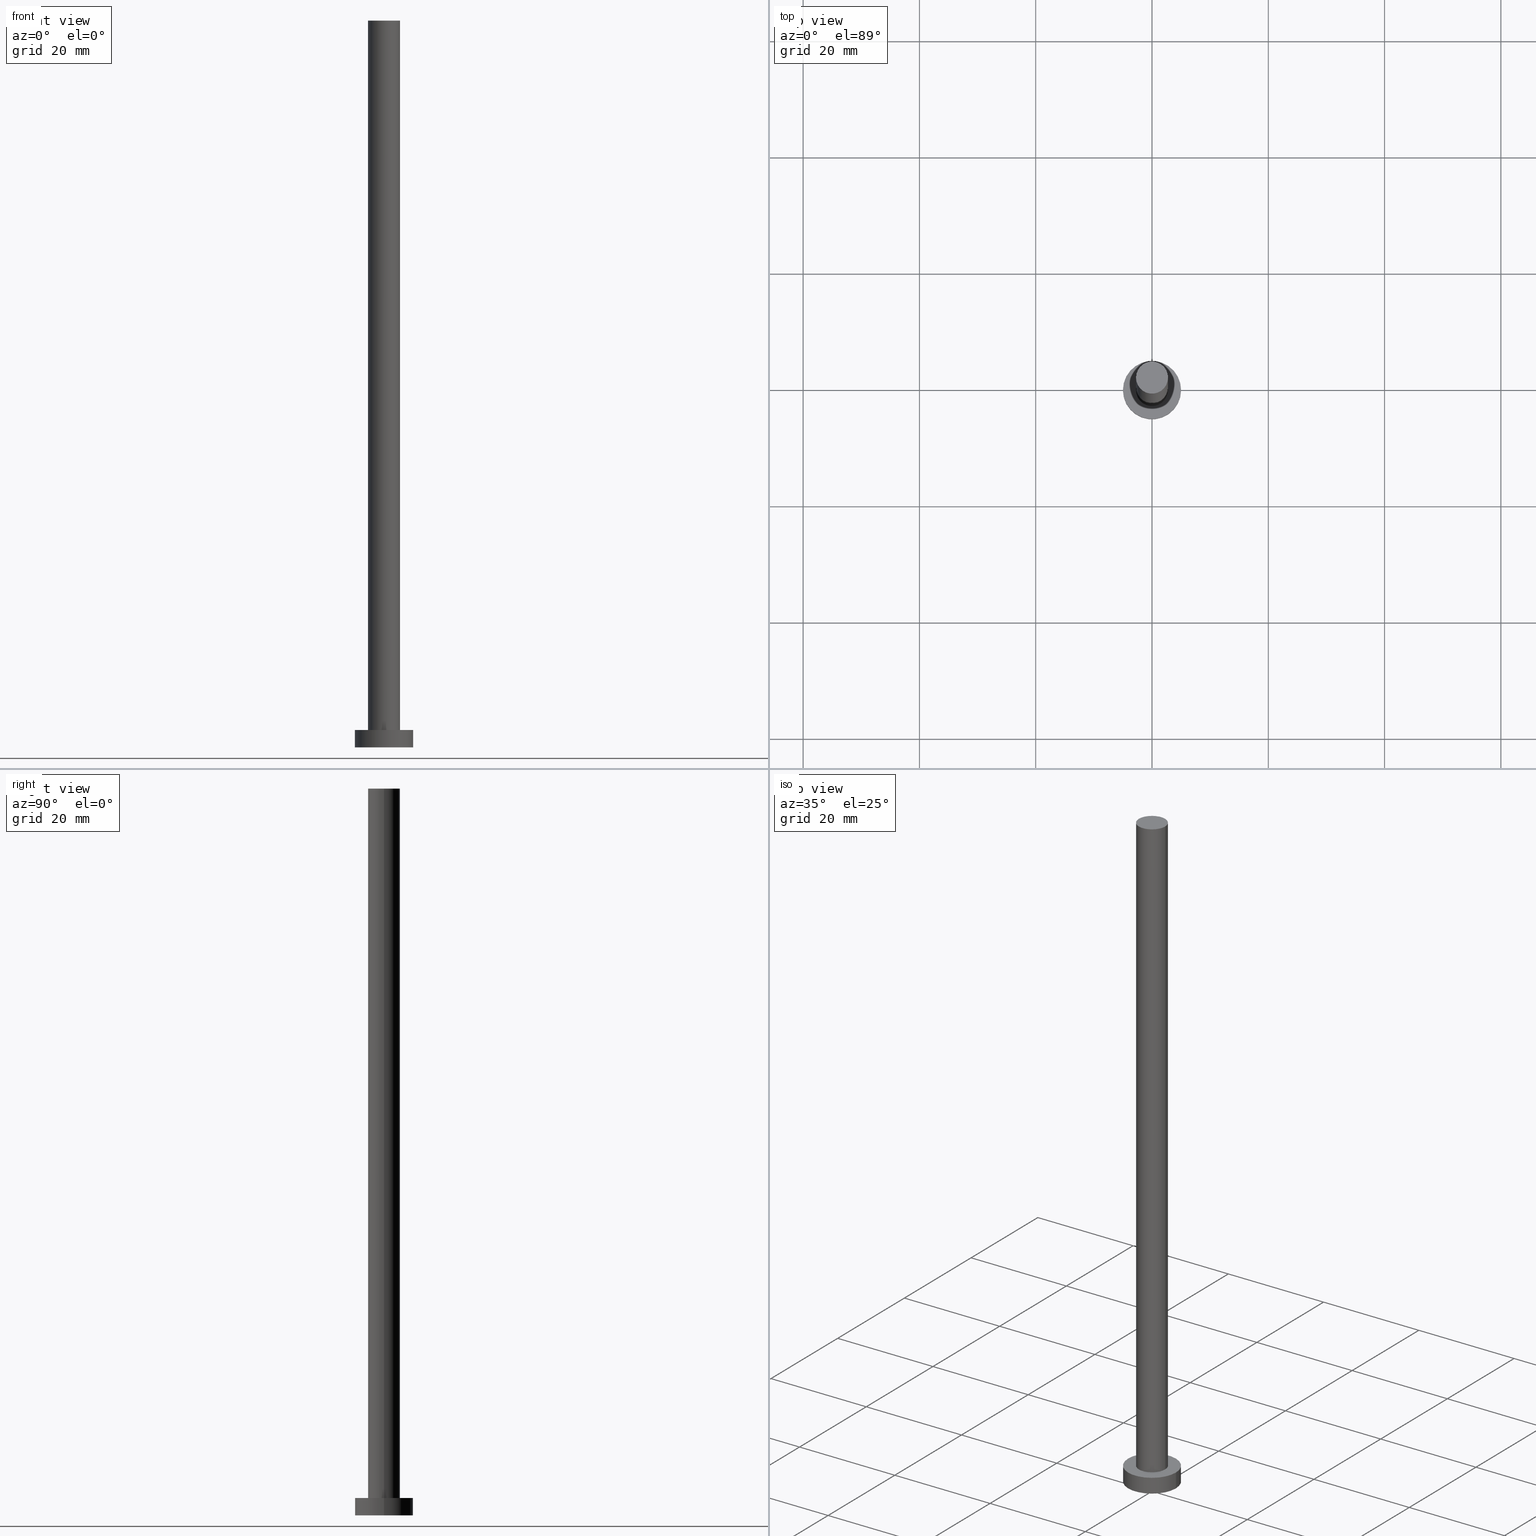
[diagram: canonical four-view strip — front | top / right | iso, engineering-drawing reading convention]
A machine part, canonical four-view strip (front | top / right | iso — engineering-drawing reading convention). The complete STEP part file that produces these views, byte-faithful:
ISO-10303-21;
HEADER;
FILE_DESCRIPTION (( 'STEP AP203' ),
    '1' );
FILE_NAME ('3640.STEP',
    '2023-02-13T13:23:10',
    ( '' ),
    ( '' ),
    'SwSTEP 2.0',
    'SolidWorks 2019',
    '' );
FILE_SCHEMA (( 'CONFIG_CONTROL_DESIGN' ));
ENDSEC;

DATA;
#1 = DIRECTION ( 'NONE',  ( -1.000000000000000000, 0.000000000000000000, 0.000000000000000000 ) ) ;
#2 = CARTESIAN_POINT ( 'NONE',  ( 5.000000000000000000, 6.123233995736766282E-16, 0.000000000000000000 ) ) ;
#3 = DIRECTION ( 'NONE',  ( -0.000000000000000000, -0.000000000000000000, -1.000000000000000000 ) ) ;
#4 = APPROVAL_PERSON_ORGANIZATION ( #160, #202, #71 ) ;
#5 = DIRECTION ( 'NONE',  ( -0.000000000000000000, -0.000000000000000000, -1.000000000000000000 ) ) ;
#6 = CYLINDRICAL_SURFACE ( 'NONE', #140, 2.750000000000000000 ) ;
#7 = DATE_AND_TIME ( #228, #53 ) ;
#8 = PRODUCT_RELATED_PRODUCT_CATEGORY ( 'detail', '', ( #14 ) ) ;
#9 = PLANE ( 'NONE',  #151 ) ;
#10 = DATE_AND_TIME ( #231, #113 ) ;
#11 = EDGE_CURVE ( 'NONE', #101, #120, #83, .T. ) ;
#12 = ORIENTED_EDGE ( 'NONE', *, *, #11, .F. ) ;
#13 = ORIENTED_EDGE ( 'NONE', *, *, #132, .T. ) ;
#14 = PRODUCT ( '3640', '3640', '', ( #155 ) ) ;
#15 = VECTOR ( 'NONE', #161, 1000.000000000000000 ) ;
#16 = ORIENTED_EDGE ( 'NONE', *, *, #203, .T. ) ;
#17 = APPLICATION_PROTOCOL_DEFINITION ( 'international standard', 'config_control_design', 1994, #172 ) ;
#18 = DIRECTION ( 'NONE',  ( -0.000000000000000000, -0.000000000000000000, -1.000000000000000000 ) ) ;
#19 = DIRECTION ( 'NONE',  ( 1.000000000000000000, 0.000000000000000000, 0.000000000000000000 ) ) ;
#20 = DIRECTION ( 'NONE',  ( -1.000000000000000000, 0.000000000000000000, 0.000000000000000000 ) ) ;
#21 = ORGANIZATION ( 'NEUR�EN�', 'NEUR�EN�', '' ) ;
#22 = VERTEX_POINT ( 'NONE', #250 ) ;
#23 = APPROVAL_STATUS ( 'not_yet_approved' ) ;
#24 = CYLINDRICAL_SURFACE ( 'NONE', #47, 5.000000000000000000 ) ;
#25 = EDGE_CURVE ( 'NONE', #22, #101, #176, .T. ) ;
#26 = CARTESIAN_POINT ( 'NONE',  ( 0.000000000000000000, 0.000000000000000000, 3.000000000000000000 ) ) ;
#27 = APPROVAL_DATE_TIME ( #7, #202 ) ;
#28 = FACE_OUTER_BOUND ( 'NONE', #194, .T. ) ;
#29 = AXIS2_PLACEMENT_3D ( 'NONE', #162, #114, #166 ) ;
#30 = PERSON_AND_ORGANIZATION ( #213, #21 ) ;
#31 = ORIENTED_EDGE ( 'NONE', *, *, #32, .F. ) ;
#32 = EDGE_CURVE ( 'NONE', #120, #138, #77, .T. ) ;
#33 = SHAPE_DEFINITION_REPRESENTATION ( #60, #66 ) ;
#34 = CALENDAR_DATE ( 2023, 13, 2 ) ;
#35 = ORIENTED_EDGE ( 'NONE', *, *, #118, .T. ) ;
#36 = ORIENTED_EDGE ( 'NONE', *, *, #191, .F. ) ;
#37 = EDGE_CURVE ( 'NONE', #58, #217, #197, .T. ) ;
#38 = ORIENTED_EDGE ( 'NONE', *, *, #118, .F. ) ;
#39 = DIRECTION ( 'NONE',  ( 1.000000000000000000, 0.000000000000000000, 0.000000000000000000 ) ) ;
#40 = CARTESIAN_POINT ( 'NONE',  ( 0.000000000000000000, 0.000000000000000000, 3.000000000000000000 ) ) ;
#41 = EDGE_LOOP ( 'NONE', ( #100, #107, #232, #99 ) ) ;
#42 = ADVANCED_FACE ( 'NONE', ( #220 ), #45, .T. ) ;
#43 = EDGE_CURVE ( 'NONE', #101, #22, #97, .T. ) ;
#44 = CARTESIAN_POINT ( 'NONE',  ( 0.000000000000000000, 0.000000000000000000, 0.000000000000000000 ) ) ;
#45 = CYLINDRICAL_SURFACE ( 'NONE', #196, 5.000000000000000000 ) ;
#46 = EDGE_LOOP ( 'NONE', ( #253, #31 ) ) ;
#47 = AXIS2_PLACEMENT_3D ( 'NONE', #26, #3, #92 ) ;
#48 = DIRECTION ( 'NONE',  ( 0.000000000000000000, 0.000000000000000000, 1.000000000000000000 ) ) ;
#49 = APPROVAL_ROLE ( '' ) ;
#50 = CARTESIAN_POINT ( 'NONE',  ( -5.000000000000000000, 0.000000000000000000, 3.000000000000000000 ) ) ;
#51 = DIRECTION ( 'NONE',  ( -0.000000000000000000, -0.000000000000000000, -1.000000000000000000 ) ) ;
#52 = DIRECTION ( 'NONE',  ( 1.000000000000000000, 0.000000000000000000, 0.000000000000000000 ) ) ;
#53 = LOCAL_TIME ( 14, 23, 10.00000000000000000, #209 ) ;
#54 = CARTESIAN_POINT ( 'NONE',  ( 0.000000000000000000, 0.000000000000000000, 125.0000000000000000 ) ) ;
#55 = FACE_BOUND ( 'NONE', #46, .T. ) ;
#56 = DATE_AND_TIME ( #34, #82 ) ;
#57 = LOCAL_TIME ( 14, 23, 10.00000000000000000, #144 ) ;
#58 = VERTEX_POINT ( 'NONE', #96 ) ;
#59 = EDGE_LOOP ( 'NONE', ( #12, #204, #117, #216 ) ) ;
#60 = PRODUCT_DEFINITION_SHAPE ( 'NONE', 'NONE',  #255 ) ;
#61 = EDGE_LOOP ( 'NONE', ( #214, #218 ) ) ;
#62 = ADVANCED_FACE ( 'NONE', ( #95 ), #24, .T. ) ;
#63 = DESIGN_CONTEXT ( 'detailed design', #172, 'design' ) ;
#64 = ADVANCED_FACE ( 'NONE', ( #76 ), #6, .T. ) ;
#65 = SECURITY_CLASSIFICATION ( '', '', #167 ) ;
#66 = ADVANCED_BREP_SHAPE_REPRESENTATION ( '3640', ( #178, #175 ), #163 ) ;
#67 = CARTESIAN_POINT ( 'NONE',  ( 0.000000000000000000, 0.000000000000000000, 125.0000000000000000 ) ) ;
#68 = CARTESIAN_POINT ( 'NONE',  ( 0.000000000000000000, 0.000000000000000000, 3.000000000000000000 ) ) ;
#69 = AXIS2_PLACEMENT_3D ( 'NONE', #243, #226, #52 ) ;
#70 = CARTESIAN_POINT ( 'NONE',  ( 2.750000000000000000, 3.367778697655220519E-16, 3.000000000000000000 ) ) ;
#71 = APPROVAL_ROLE ( '' ) ;
#72 = DIRECTION ( 'NONE',  ( -0.000000000000000000, -0.000000000000000000, -1.000000000000000000 ) ) ;
#73 = ORIENTED_EDGE ( 'NONE', *, *, #191, .T. ) ;
#74 = DIRECTION ( 'NONE',  ( 0.000000000000000000, 0.000000000000000000, 1.000000000000000000 ) ) ;
#75 = CC_DESIGN_DATE_AND_TIME_ASSIGNMENT ( #225, #180, ( #255 ) ) ;
#76 = FACE_OUTER_BOUND ( 'NONE', #59, .T. ) ;
#77 = CIRCLE ( 'NONE', #244, 2.750000000000000000 ) ;
#78 = APPROVAL_DATE_TIME ( #10, #215 ) ;
#79 = COORDINATED_UNIVERSAL_TIME_OFFSET ( 1, 0, .AHEAD. ) ;
#80 = EDGE_CURVE ( 'NONE', #154, #230, #251, .T. ) ;
#81 = APPLICATION_PROTOCOL_DEFINITION ( 'international standard', 'config_control_design', 1994, #149 ) ;
#82 = LOCAL_TIME ( 14, 23, 10.00000000000000000, #79 ) ;
#83 = LINE ( 'NONE', #235, #159 ) ;
#84 = CARTESIAN_POINT ( 'NONE',  ( 0.000000000000000000, 0.000000000000000000, 3.000000000000000000 ) ) ;
#85 = VECTOR ( 'NONE', #199, 1000.000000000000000 ) ;
#86 = ORIENTED_EDGE ( 'NONE', *, *, #37, .F. ) ;
#87 = PLANE ( 'NONE',  #192 ) ;
#88 = PERSON_AND_ORGANIZATION ( #213, #21 ) ;
#89 = CYLINDRICAL_SURFACE ( 'NONE', #229, 2.750000000000000000 ) ;
#90 = CALENDAR_DATE ( 2023, 13, 2 ) ;
#91 = VECTOR ( 'NONE', #5, 1000.000000000000000 ) ;
#92 = DIRECTION ( 'NONE',  ( -1.000000000000000000, 0.000000000000000000, 0.000000000000000000 ) ) ;
#93 = PERSON_AND_ORGANIZATION_ROLE ( 'design_owner' ) ;
#94 = CC_DESIGN_PERSON_AND_ORGANIZATION_ASSIGNMENT ( #181, #127, ( #255 ) ) ;
#95 = FACE_OUTER_BOUND ( 'NONE', #189, .T. ) ;
#96 = CARTESIAN_POINT ( 'NONE',  ( -5.000000000000000000, 0.000000000000000000, 3.000000000000000000 ) ) ;
#97 = CIRCLE ( 'NONE', #125, 2.750000000000000000 ) ;
#98 = AXIS2_PLACEMENT_3D ( 'NONE', #84, #158, #136 ) ;
#99 = ORIENTED_EDGE ( 'NONE', *, *, #171, .F. ) ;
#100 = ORIENTED_EDGE ( 'NONE', *, *, #43, .F. ) ;
#101 = VERTEX_POINT ( 'NONE', #207 ) ;
#102 = CLOSED_SHELL ( 'NONE', ( #233, #62, #42, #248, #137, #64, #237 ) ) ;
#103 = CC_DESIGN_APPROVAL ( #202, ( #121 ) ) ;
#104 =( NAMED_UNIT ( * ) PLANE_ANGLE_UNIT ( ) SI_UNIT ( $, .RADIAN. ) );
#105 = UNCERTAINTY_MEASURE_WITH_UNIT (LENGTH_MEASURE( 1.000000000000000082E-05 ), #169, 'distance_accuracy_value', 'NONE');
#106 = DIRECTION ( 'NONE',  ( 0.000000000000000000, 0.000000000000000000, 1.000000000000000000 ) ) ;
#107 = ORIENTED_EDGE ( 'NONE', *, *, #11, .T. ) ;
#108 = APPROVAL_DATE_TIME ( #239, #157 ) ;
#109 = EDGE_CURVE ( 'NONE', #138, #120, #173, .T. ) ;
#110 = CARTESIAN_POINT ( 'NONE',  ( 0.000000000000000000, 0.000000000000000000, 0.000000000000000000 ) ) ;
#111 = AXIS2_PLACEMENT_3D ( 'NONE', #240, #48, #147 ) ;
#112 = LINE ( 'NONE', #221, #91 ) ;
#113 = LOCAL_TIME ( 14, 23, 10.00000000000000000, #115 ) ;
#114 = DIRECTION ( 'NONE',  ( 0.000000000000000000, 0.000000000000000000, 1.000000000000000000 ) ) ;
#115 = COORDINATED_UNIVERSAL_TIME_OFFSET ( 1, 0, .AHEAD. ) ;
#116 = PERSON_AND_ORGANIZATION_ROLE ( 'creator' ) ;
#117 = ORIENTED_EDGE ( 'NONE', *, *, #171, .T. ) ;
#118 = EDGE_CURVE ( 'NONE', #217, #230, #182, .T. ) ;
#119 = ORIENTED_EDGE ( 'NONE', *, *, #43, .T. ) ;
#120 = VERTEX_POINT ( 'NONE', #70 ) ;
#121 = PRODUCT_DEFINITION_FORMATION_WITH_SPECIFIED_SOURCE ( 'LIBOVOLN�', '', #14, .NOT_KNOWN. ) ;
#122 = DIRECTION ( 'NONE',  ( 0.000000000000000000, 0.000000000000000000, 1.000000000000000000 ) ) ;
#123 = CARTESIAN_POINT ( 'NONE',  ( 0.000000000000000000, 0.000000000000000000, 3.000000000000000000 ) ) ;
#124 = CC_DESIGN_PERSON_AND_ORGANIZATION_ASSIGNMENT ( #188, #245, ( #121 ) ) ;
#125 = AXIS2_PLACEMENT_3D ( 'NONE', #54, #223, #185 ) ;
#126 = LINE ( 'NONE', #50, #85 ) ;
#127 = PERSON_AND_ORGANIZATION_ROLE ( 'creator' ) ;
#128 = PLANE ( 'NONE',  #210 ) ;
#129 = ORIENTED_EDGE ( 'NONE', *, *, #80, .T. ) ;
#130 = CIRCLE ( 'NONE', #219, 5.000000000000000000 ) ;
#131 = FACE_OUTER_BOUND ( 'NONE', #224, .T. ) ;
#132 = EDGE_CURVE ( 'NONE', #230, #154, #252, .T. ) ;
#133 = ORIENTED_EDGE ( 'NONE', *, *, #37, .T. ) ;
#134 = DIRECTION ( 'NONE',  ( 0.000000000000000000, 0.000000000000000000, 1.000000000000000000 ) ) ;
#135 = DIRECTION ( 'NONE',  ( 1.000000000000000000, 0.000000000000000000, 0.000000000000000000 ) ) ;
#136 = DIRECTION ( 'NONE',  ( 1.000000000000000000, 0.000000000000000000, 0.000000000000000000 ) ) ;
#137 = ADVANCED_FACE ( 'NONE', ( #177 ), #87, .F. ) ;
#138 = VERTEX_POINT ( 'NONE', #165 ) ;
#139 = DIRECTION ( 'NONE',  ( 1.000000000000000000, 0.000000000000000000, -0.000000000000000000 ) ) ;
#140 = AXIS2_PLACEMENT_3D ( 'NONE', #242, #51, #20 ) ;
#141 = CALENDAR_DATE ( 2023, 13, 2 ) ;
#142 = CARTESIAN_POINT ( 'NONE',  ( 0.000000000000000000, 0.000000000000000000, 125.0000000000000000 ) ) ;
#143 = DIRECTION ( 'NONE',  ( 0.000000000000000000, 0.000000000000000000, 1.000000000000000000 ) ) ;
#144 = COORDINATED_UNIVERSAL_TIME_OFFSET ( 1, 0, .AHEAD. ) ;
#145 = CARTESIAN_POINT ( 'NONE',  ( 5.000000000000000000, 6.123233995736766282E-16, 3.000000000000000000 ) ) ;
#146 = APPROVAL_ROLE ( '' ) ;
#147 = DIRECTION ( 'NONE',  ( 1.000000000000000000, 0.000000000000000000, 0.000000000000000000 ) ) ;
#148 = CC_DESIGN_PERSON_AND_ORGANIZATION_ASSIGNMENT ( #198, #93, ( #14 ) ) ;
#149 = APPLICATION_CONTEXT ( 'configuration controlled 3d designs of mechanical parts and assemblies' ) ;
#150 = CC_DESIGN_PERSON_AND_ORGANIZATION_ASSIGNMENT ( #246, #186, ( #65 ) ) ;
#151 = AXIS2_PLACEMENT_3D ( 'NONE', #168, #134, #187 ) ;
#152 = APPROVAL_PERSON_ORGANIZATION ( #247, #215, #146 ) ;
#153 = DIRECTION ( 'NONE',  ( 1.000000000000000000, 0.000000000000000000, -0.000000000000000000 ) ) ;
#154 = VERTEX_POINT ( 'NONE', #179 ) ;
#155 = MECHANICAL_CONTEXT ( 'NONE', #149, 'mechanical' ) ;
#156 = CC_DESIGN_PERSON_AND_ORGANIZATION_ASSIGNMENT ( #30, #116, ( #121 ) ) ;
#157 = APPROVAL ( #23, 'NEUR�EN�' ) ;
#158 = DIRECTION ( 'NONE',  ( 0.000000000000000000, 0.000000000000000000, 1.000000000000000000 ) ) ;
#159 = VECTOR ( 'NONE', #18, 1000.000000000000000 ) ;
#160 = PERSON_AND_ORGANIZATION ( #213, #21 ) ;
#161 = DIRECTION ( 'NONE',  ( -0.000000000000000000, -0.000000000000000000, -1.000000000000000000 ) ) ;
#162 = CARTESIAN_POINT ( 'NONE',  ( 0.000000000000000000, 0.000000000000000000, 0.000000000000000000 ) ) ;
#163 =( GEOMETRIC_REPRESENTATION_CONTEXT ( 3 ) GLOBAL_UNCERTAINTY_ASSIGNED_CONTEXT ( ( #105 ) ) GLOBAL_UNIT_ASSIGNED_CONTEXT ( ( #169, #104, #193 ) ) REPRESENTATION_CONTEXT ( 'NONE', 'WORKASPACE' ) );
#164 = COORDINATED_UNIVERSAL_TIME_OFFSET ( 1, 0, .AHEAD. ) ;
#165 = CARTESIAN_POINT ( 'NONE',  ( -2.750000000000000000, 0.000000000000000000, 3.000000000000000000 ) ) ;
#166 = DIRECTION ( 'NONE',  ( 1.000000000000000000, 0.000000000000000000, 0.000000000000000000 ) ) ;
#167 = SECURITY_CLASSIFICATION_LEVEL ( 'unclassified' ) ;
#168 = CARTESIAN_POINT ( 'NONE',  ( 0.000000000000000000, 0.000000000000000000, 3.000000000000000000 ) ) ;
#169 =( LENGTH_UNIT ( ) NAMED_UNIT ( * ) SI_UNIT ( .MILLI., .METRE. ) );
#170 = LOCAL_TIME ( 14, 23, 10.00000000000000000, #164 ) ;
#171 = EDGE_CURVE ( 'NONE', #22, #138, #112, .T. ) ;
#172 = APPLICATION_CONTEXT ( 'configuration controlled 3d designs of mechanical parts and assemblies' ) ;
#173 = CIRCLE ( 'NONE', #69, 2.750000000000000000 ) ;
#174 = ORIENTED_EDGE ( 'NONE', *, *, #203, .F. ) ;
#175 = AXIS2_PLACEMENT_3D ( 'NONE', #44, #122, #39 ) ;
#176 = CIRCLE ( 'NONE', #190, 2.750000000000000000 ) ;
#177 = FACE_OUTER_BOUND ( 'NONE', #61, .T. ) ;
#178 = MANIFOLD_SOLID_BREP ( 'P�idat vysunut�m3', #102 ) ;
#179 = CARTESIAN_POINT ( 'NONE',  ( -5.000000000000000000, 0.000000000000000000, 0.000000000000000000 ) ) ;
#180 = DATE_TIME_ROLE ( 'creation_date' ) ;
#181 = PERSON_AND_ORGANIZATION ( #213, #21 ) ;
#182 = LINE ( 'NONE', #206, #15 ) ;
#183 = DATE_TIME_ROLE ( 'classification_date' ) ;
#184 = CC_DESIGN_DATE_AND_TIME_ASSIGNMENT ( #56, #183, ( #65 ) ) ;
#185 = DIRECTION ( 'NONE',  ( 1.000000000000000000, 0.000000000000000000, 0.000000000000000000 ) ) ;
#186 = PERSON_AND_ORGANIZATION_ROLE ( 'classification_officer' ) ;
#187 = DIRECTION ( 'NONE',  ( 1.000000000000000000, 0.000000000000000000, -0.000000000000000000 ) ) ;
#188 = PERSON_AND_ORGANIZATION ( #213, #21 ) ;
#189 = EDGE_LOOP ( 'NONE', ( #36, #35, #13, #174 ) ) ;
#190 = AXIS2_PLACEMENT_3D ( 'NONE', #67, #234, #135 ) ;
#191 = EDGE_CURVE ( 'NONE', #217, #58, #130, .T. ) ;
#192 = AXIS2_PLACEMENT_3D ( 'NONE', #110, #238, #139 ) ;
#193 =( NAMED_UNIT ( * ) SI_UNIT ( $, .STERADIAN. ) SOLID_ANGLE_UNIT ( ) );
#194 = EDGE_LOOP ( 'NONE', ( #133, #73 ) ) ;
#195 = DIRECTION ( 'NONE',  ( -0.000000000000000000, -0.000000000000000000, -1.000000000000000000 ) ) ;
#196 = AXIS2_PLACEMENT_3D ( 'NONE', #123, #195, #1 ) ;
#197 = CIRCLE ( 'NONE', #98, 5.000000000000000000 ) ;
#198 = PERSON_AND_ORGANIZATION ( #213, #21 ) ;
#199 = DIRECTION ( 'NONE',  ( -0.000000000000000000, -0.000000000000000000, -1.000000000000000000 ) ) ;
#200 = APPROVAL_STATUS ( 'not_yet_approved' ) ;
#201 = CARTESIAN_POINT ( 'NONE',  ( 0.000000000000000000, 0.000000000000000000, 125.0000000000000000 ) ) ;
#202 = APPROVAL ( #200, 'NEUR�EN�' ) ;
#203 = EDGE_CURVE ( 'NONE', #58, #154, #126, .T. ) ;
#204 = ORIENTED_EDGE ( 'NONE', *, *, #25, .F. ) ;
#205 = CC_DESIGN_APPROVAL ( #215, ( #65 ) ) ;
#206 = CARTESIAN_POINT ( 'NONE',  ( 5.000000000000000000, 6.123233995736766282E-16, 3.000000000000000000 ) ) ;
#207 = CARTESIAN_POINT ( 'NONE',  ( 2.750000000000000000, 3.367778697655220519E-16, 125.0000000000000000 ) ) ;
#208 = APPROVAL_STATUS ( 'not_yet_approved' ) ;
#209 = COORDINATED_UNIVERSAL_TIME_OFFSET ( 1, 0, .AHEAD. ) ;
#210 = AXIS2_PLACEMENT_3D ( 'NONE', #201, #143, #153 ) ;
#211 = EDGE_LOOP ( 'NONE', ( #38, #86, #16, #129 ) ) ;
#212 = ORIENTED_EDGE ( 'NONE', *, *, #25, .T. ) ;
#213 = PERSON ( 'NEUR�EN�', 'NEUR�EN�', 'NEUR�EN�', ('NEUR�EN�'), ('NEUR�EN�'), ('NEUR�EN�') ) ;
#214 = ORIENTED_EDGE ( 'NONE', *, *, #80, .F. ) ;
#215 = APPROVAL ( #208, 'NEUR�EN�' ) ;
#216 = ORIENTED_EDGE ( 'NONE', *, *, #109, .T. ) ;
#217 = VERTEX_POINT ( 'NONE', #145 ) ;
#218 = ORIENTED_EDGE ( 'NONE', *, *, #132, .F. ) ;
#219 = AXIS2_PLACEMENT_3D ( 'NONE', #68, #74, #19 ) ;
#220 = FACE_OUTER_BOUND ( 'NONE', #211, .T. ) ;
#221 = CARTESIAN_POINT ( 'NONE',  ( -2.750000000000000000, 0.000000000000000000, 125.0000000000000000 ) ) ;
#222 = DIRECTION ( 'NONE',  ( -1.000000000000000000, 0.000000000000000000, 0.000000000000000000 ) ) ;
#223 = DIRECTION ( 'NONE',  ( 0.000000000000000000, 0.000000000000000000, 1.000000000000000000 ) ) ;
#224 = EDGE_LOOP ( 'NONE', ( #212, #119 ) ) ;
#225 = DATE_AND_TIME ( #90, #57 ) ;
#226 = DIRECTION ( 'NONE',  ( 0.000000000000000000, 0.000000000000000000, 1.000000000000000000 ) ) ;
#227 = CC_DESIGN_APPROVAL ( #157, ( #255 ) ) ;
#228 = CALENDAR_DATE ( 2023, 13, 2 ) ;
#229 = AXIS2_PLACEMENT_3D ( 'NONE', #142, #72, #222 ) ;
#230 = VERTEX_POINT ( 'NONE', #2 ) ;
#231 = CALENDAR_DATE ( 2023, 13, 2 ) ;
#232 = ORIENTED_EDGE ( 'NONE', *, *, #32, .T. ) ;
#233 = ADVANCED_FACE ( 'NONE', ( #241 ), #89, .T. ) ;
#234 = DIRECTION ( 'NONE',  ( 0.000000000000000000, 0.000000000000000000, 1.000000000000000000 ) ) ;
#235 = CARTESIAN_POINT ( 'NONE',  ( 2.750000000000000000, 3.367778697655220519E-16, 125.0000000000000000 ) ) ;
#236 = CC_DESIGN_SECURITY_CLASSIFICATION ( #65, ( #121 ) ) ;
#237 = ADVANCED_FACE ( 'NONE', ( #131 ), #128, .T. ) ;
#238 = DIRECTION ( 'NONE',  ( 0.000000000000000000, 0.000000000000000000, 1.000000000000000000 ) ) ;
#239 = DATE_AND_TIME ( #141, #170 ) ;
#240 = CARTESIAN_POINT ( 'NONE',  ( 0.000000000000000000, 0.000000000000000000, 0.000000000000000000 ) ) ;
#241 = FACE_OUTER_BOUND ( 'NONE', #41, .T. ) ;
#242 = CARTESIAN_POINT ( 'NONE',  ( 0.000000000000000000, 0.000000000000000000, 125.0000000000000000 ) ) ;
#243 = CARTESIAN_POINT ( 'NONE',  ( 0.000000000000000000, 0.000000000000000000, 3.000000000000000000 ) ) ;
#244 = AXIS2_PLACEMENT_3D ( 'NONE', #40, #106, #254 ) ;
#245 = PERSON_AND_ORGANIZATION_ROLE ( 'design_supplier' ) ;
#246 = PERSON_AND_ORGANIZATION ( #213, #21 ) ;
#247 = PERSON_AND_ORGANIZATION ( #213, #21 ) ;
#248 = ADVANCED_FACE ( 'NONE', ( #55, #28 ), #9, .T. ) ;
#249 = APPROVAL_PERSON_ORGANIZATION ( #88, #157, #49 ) ;
#250 = CARTESIAN_POINT ( 'NONE',  ( -2.750000000000000000, 0.000000000000000000, 125.0000000000000000 ) ) ;
#251 = CIRCLE ( 'NONE', #29, 5.000000000000000000 ) ;
#252 = CIRCLE ( 'NONE', #111, 5.000000000000000000 ) ;
#253 = ORIENTED_EDGE ( 'NONE', *, *, #109, .F. ) ;
#254 = DIRECTION ( 'NONE',  ( 1.000000000000000000, 0.000000000000000000, 0.000000000000000000 ) ) ;
#255 = PRODUCT_DEFINITION ( 'NEZN�M�', '', #121, #63 ) ;
ENDSEC;
END-ISO-10303-21;
